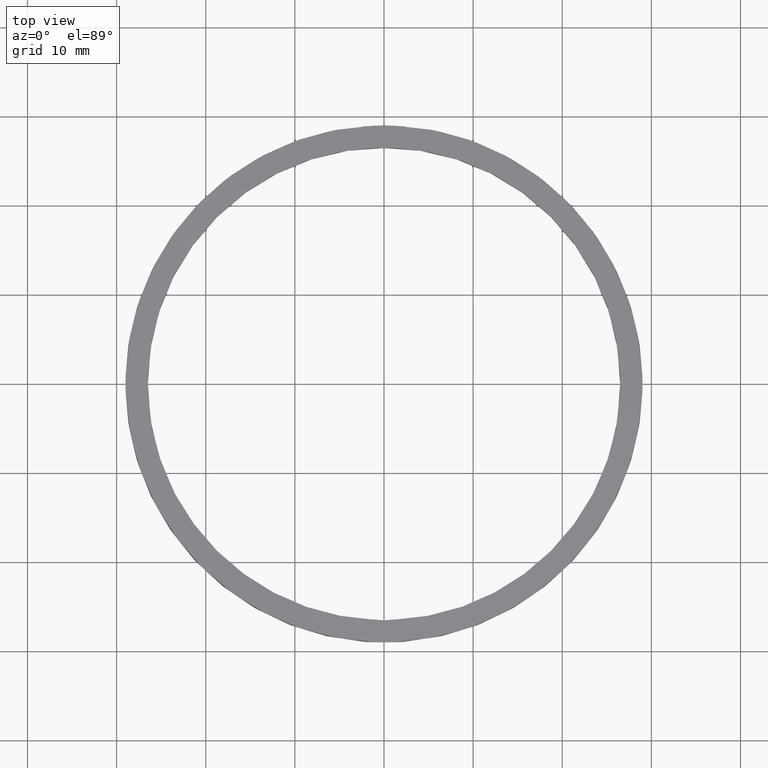
[diagram: clean part render]
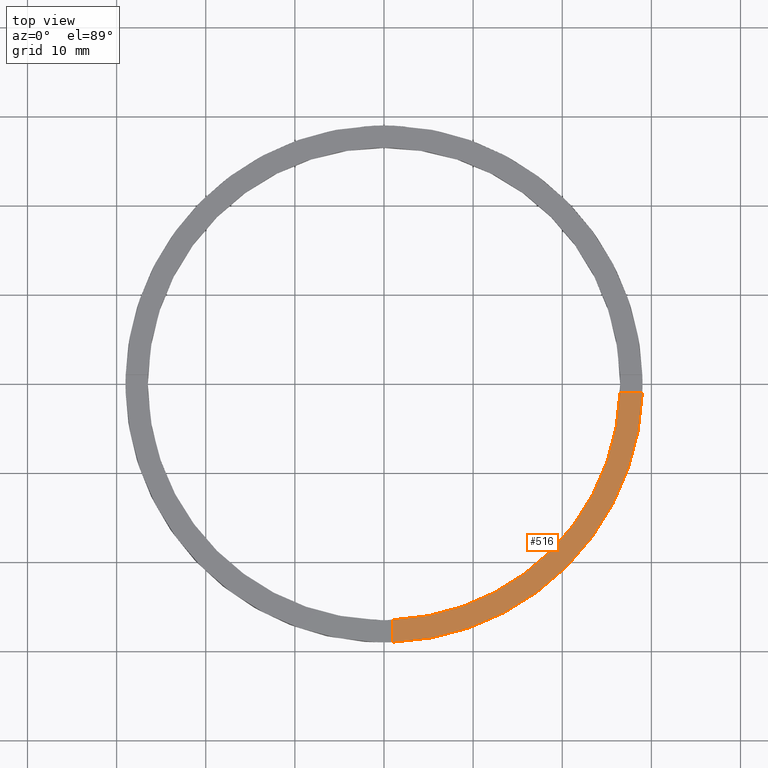
[diagram: same view with one face highlighted and labeled with its STEP entity id]
A machine part, top view. The second image highlights one B-rep face of the part: STEP entity #516.
In plain terms, the highlighted planar face has unit normal (0, 0, 1).
Its self-contained STEP definition (entity closure, byte-faithful):
#27 = AXIS2_PLACEMENT_3D ( 'NONE', #452, #257, #744 ) ;
#36 = ORIENTED_EDGE ( 'NONE', *, *, #100, .F. ) ;
#42 = CARTESIAN_POINT ( 'NONE',  ( 0.000000000000000000, 0.000000000000000000, 2.500000000000000000 ) ) ;
#49 = DIRECTION ( 'NONE',  ( 0.000000000000000000, 0.000000000000000000, 1.000000000000000000 ) ) ;
#50 = ORIENTED_EDGE ( 'NONE', *, *, #147, .T. ) ;
#62 = VERTEX_POINT ( 'NONE', #573 ) ;
#87 = CARTESIAN_POINT ( 'NONE',  ( 26.48112535373071807, -1.000000000000156986, 2.500000000000000000 ) ) ;
#94 = DIRECTION ( 'NONE',  ( -1.301042606982605567E-16, 1.000000000000000000, -0.000000000000000000 ) ) ;
#100 = EDGE_CURVE ( 'NONE', #445, #568, #603, .T. ) ;
#111 = DIRECTION ( 'NONE',  ( 1.000000000000000000, 0.000000000000000000, 0.000000000000000000 ) ) ;
#120 = LINE ( 'NONE', #755, #372 ) ;
#140 = CARTESIAN_POINT ( 'NONE',  ( 0.9999999999998402389, -26.48112535373072873, 2.500000000000000000 ) ) ;
#141 = AXIS2_PLACEMENT_3D ( 'NONE', #218, #646, #338 ) ;
#147 = EDGE_CURVE ( 'NONE', #466, #62, #653, .T. ) ;
#204 = EDGE_LOOP ( 'NONE', ( #555, #36, #270, #50 ) ) ;
#218 = CARTESIAN_POINT ( 'NONE',  ( 0.000000000000000000, 0.000000000000000000, 2.500000000000000000 ) ) ;
#246 = CARTESIAN_POINT ( 'NONE',  ( 19.00000000000000000, -1.000000000000157208, 2.500000000000000000 ) ) ;
#257 = DIRECTION ( 'NONE',  ( 0.000000000000000000, 0.000000000000000000, 1.000000000000000000 ) ) ;
#270 = ORIENTED_EDGE ( 'NONE', *, *, #725, .F. ) ;
#338 = DIRECTION ( 'NONE',  ( 1.000000000000000000, 0.000000000000000000, 0.000000000000000000 ) ) ;
#372 = VECTOR ( 'NONE', #94, 1000.000000000000000 ) ;
#439 = VECTOR ( 'NONE', #527, 1000.000000000000000 ) ;
#440 = PLANE ( 'NONE',  #27 ) ;
#445 = VERTEX_POINT ( 'NONE', #140 ) ;
#452 = CARTESIAN_POINT ( 'NONE',  ( 0.000000000000000000, 0.000000000000000000, 2.500000000000000000 ) ) ;
#466 = VERTEX_POINT ( 'NONE', #678 ) ;
#516 = ADVANCED_FACE ( 'NONE', ( #692 ), #440, .T. ) ;
#527 = DIRECTION ( 'NONE',  ( 1.000000000000000000, 4.336808689942018352E-17, 0.000000000000000000 ) ) ;
#555 = ORIENTED_EDGE ( 'NONE', *, *, #641, .F. ) ;
#568 = VERTEX_POINT ( 'NONE', #87 ) ;
#573 = CARTESIAN_POINT ( 'NONE',  ( 28.98275349237887255, -1.000000000000156763, 2.500000000000000000 ) ) ;
#603 = CIRCLE ( 'NONE', #141, 26.50000000000000355 ) ;
#641 = EDGE_CURVE ( 'NONE', #568, #62, #689, .T. ) ;
#646 = DIRECTION ( 'NONE',  ( 0.000000000000000000, 0.000000000000000000, 1.000000000000000000 ) ) ;
#653 = CIRCLE ( 'NONE', #736, 29.00000000000000000 ) ;
#678 = CARTESIAN_POINT ( 'NONE',  ( 0.9999999999998404610, -28.98275349237888321, 2.500000000000000000 ) ) ;
#689 = LINE ( 'NONE', #246, #439 ) ;
#692 = FACE_OUTER_BOUND ( 'NONE', #204, .T. ) ;
#725 = EDGE_CURVE ( 'NONE', #466, #445, #120, .T. ) ;
#736 = AXIS2_PLACEMENT_3D ( 'NONE', #42, #49, #111 ) ;
#744 = DIRECTION ( 'NONE',  ( 1.000000000000000000, 0.000000000000000000, -0.000000000000000000 ) ) ;
#755 = CARTESIAN_POINT ( 'NONE',  ( 0.9999999999998391287, -19.00000000000018474, 2.500000000000000000 ) ) ;